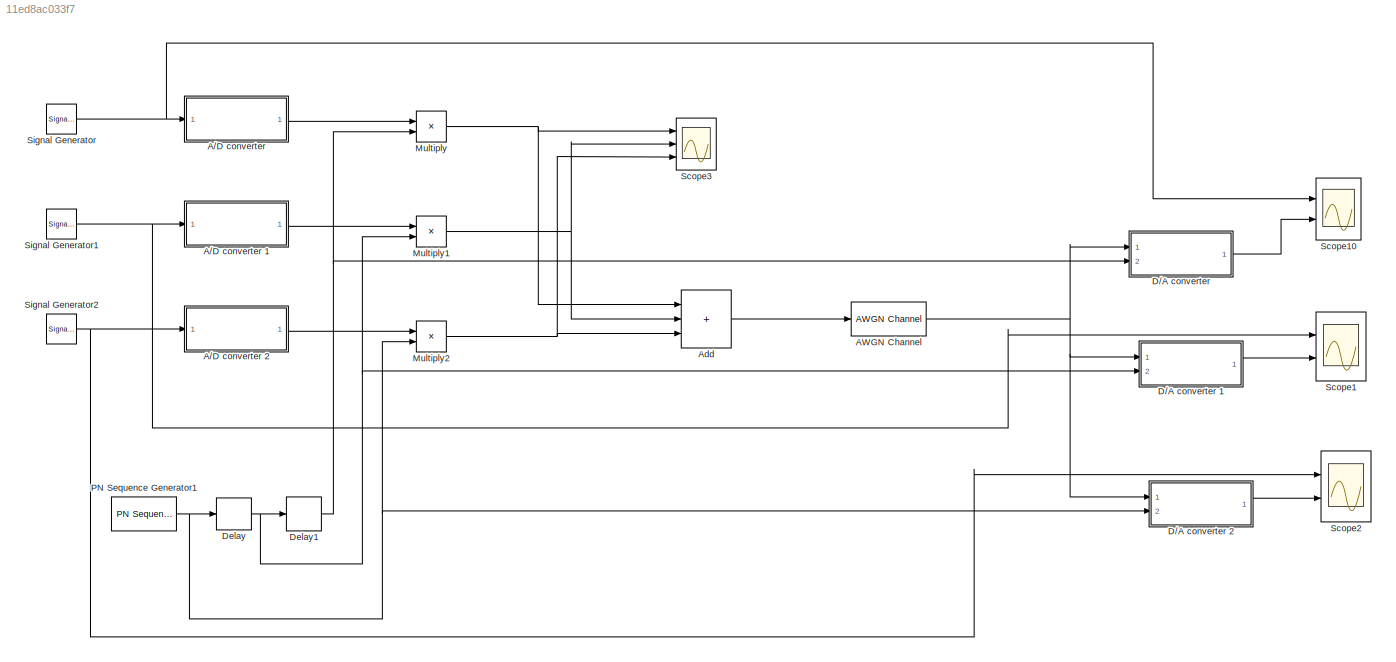
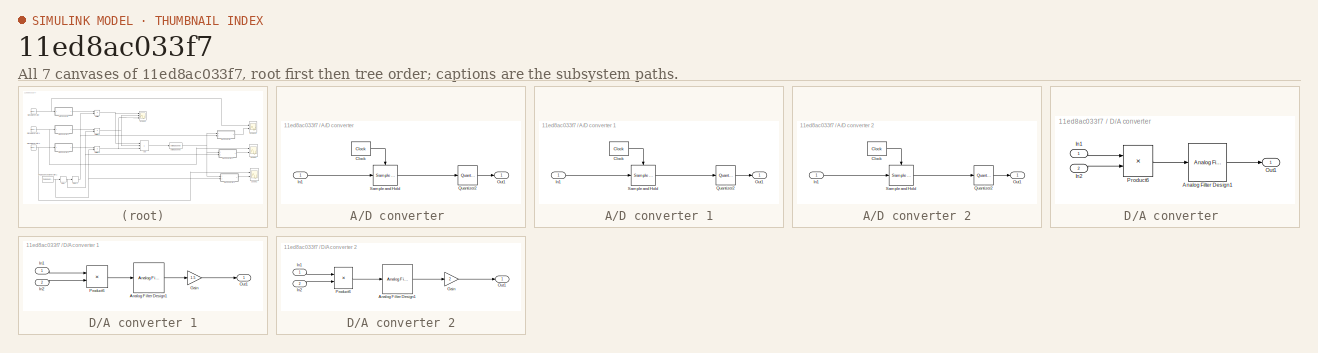
[diagram: thumbnail index - all 7 canvases of the model, root first then tree order]
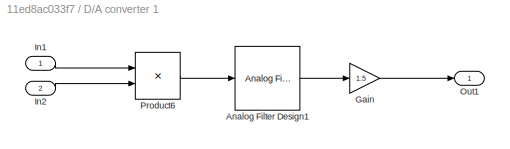
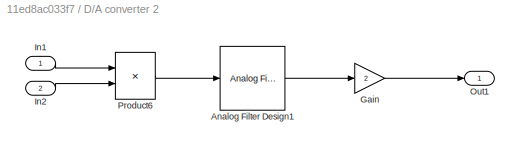
MODEL slx_11ed8ac033f7
KIND model
CONFIG AbsTol = auto
CONFIG EnableMultiTasking = off
CONFIG FixedStep = auto
CONFIG MaxStep = auto
CONFIG MinStep = auto
CONFIG RelTol = 1e-3
CONFIG SampleTimeConstraint = Unconstrained
CONFIG SolverName = VariableStepAuto
CONFIG StartTime = 0.0
CONFIG StopTime = 5
BLOCK [SubSystem] A//D converter 
  Ports = [1, 1]
  RequestExecContextInheritance = off
BLOCK [Reference] A//D converter /Clock  REF=simulink_extras/Flip Flops/Clock
  Ports = [0, 1]
  SourceBlock = simulink_extras/Flip Flops/Clock
  SourceProductBaseCode = SL
  SourceType = Digital clock
BLOCK [Inport] A//D converter /In1
BLOCK [Outport] A//D converter /Out1
  VectorParamsAs1DForOutWhenUnconnected = off
BLOCK [Quantizer] A//D converter /Quantizer2
  LinearizeAsGain = off
  QuantizationInterval = 0.2
BLOCK [Reference] A//D converter /Sample and Hold  REF=dspsigops/Sample
and Hold
  Ports = [1, 1, 0, 1]
  SourceBlock = dspsigops/Sample\nand Hold
  SourceProductBaseCode = DS
  SourceType = Sample and Hold
BLOCK [SubSystem] A//D converter 1
  Ports = [1, 1]
  RequestExecContextInheritance = off
BLOCK [Reference] A//D converter 1/Clock  REF=simulink_extras/Flip Flops/Clock
  Ports = [0, 1]
  SourceBlock = simulink_extras/Flip Flops/Clock
  SourceProductBaseCode = SL
  SourceType = Digital clock
BLOCK [Inport] A//D converter 1/In1
BLOCK [Outport] A//D converter 1/Out1
  VectorParamsAs1DForOutWhenUnconnected = off
BLOCK [Quantizer] A//D converter 1/Quantizer2
  LinearizeAsGain = off
  QuantizationInterval = 0.2
BLOCK [Reference] A//D converter 1/Sample and Hold  REF=dspsigops/Sample
and Hold
  Ports = [1, 1, 0, 1]
  SourceBlock = dspsigops/Sample\nand Hold
  SourceProductBaseCode = DS
  SourceType = Sample and Hold
BLOCK [SubSystem] A//D converter 2
  Ports = [1, 1]
  RequestExecContextInheritance = off
BLOCK [Reference] A//D converter 2/Clock  REF=simulink_extras/Flip Flops/Clock
  Ports = [0, 1]
  SourceBlock = simulink_extras/Flip Flops/Clock
  SourceProductBaseCode = SL
  SourceType = Digital clock
BLOCK [Inport] A//D converter 2/In1
BLOCK [Outport] A//D converter 2/Out1
  VectorParamsAs1DForOutWhenUnconnected = off
BLOCK [Quantizer] A//D converter 2/Quantizer2
  LinearizeAsGain = off
  QuantizationInterval = 0.2
BLOCK [Reference] A//D converter 2/Sample and Hold  REF=dspsigops/Sample
and Hold
  Ports = [1, 1, 0, 1]
  SourceBlock = dspsigops/Sample\nand Hold
  SourceProductBaseCode = DS
  SourceType = Sample and Hold
BLOCK [Reference] AWGN Channel  REF=commchan3/AWGN
Channel
  Ports = [1, 1]
  SourceBlock = commchan3/AWGN\nChannel
  SourceProductBaseCode = CM
  SourceType = AWGN Channel
  UserDataPersistent = on
BLOCK [Sum] Add
  IconShape = rectangular
  Inputs = +++
  Ports = [3, 1]
BLOCK [SubSystem] D//A converter 
  Ports = [2, 1]
  RequestExecContextInheritance = off
BLOCK [Reference] D//A converter /Analog Filter Design1  REF=dsparch4/Analog
Filter Design
  Ports = [1, 1]
  SourceBlock = dsparch4/Analog\nFilter Design
  SourceProductBaseCode = DS
  SourceType = Analog Filter Design
BLOCK [Inport] D//A converter /In1
BLOCK [Inport] D//A converter /In2
  Port = 2
BLOCK [Outport] D//A converter /Out1
  VectorParamsAs1DForOutWhenUnconnected = off
BLOCK [Product] D//A converter /Product6
  Ports = [2, 1]
BLOCK [SubSystem] D//A converter 1
  Ports = [2, 1]
  RequestExecContextInheritance = off
BLOCK [Reference] D//A converter 1/Analog Filter Design1  REF=dsparch4/Analog
Filter Design
  Ports = [1, 1]
  SourceBlock = dsparch4/Analog\nFilter Design
  SourceProductBaseCode = DS
  SourceType = Analog Filter Design
BLOCK [Gain] D//A converter 1/Gain
  Gain = 1.5
BLOCK [Inport] D//A converter 1/In1
BLOCK [Inport] D//A converter 1/In2
  Port = 2
BLOCK [Outport] D//A converter 1/Out1
  VectorParamsAs1DForOutWhenUnconnected = off
BLOCK [Product] D//A converter 1/Product6
  Ports = [2, 1]
BLOCK [SubSystem] D//A converter 2
  Ports = [2, 1]
  RequestExecContextInheritance = off
BLOCK [Reference] D//A converter 2/Analog Filter Design1  REF=dsparch4/Analog
Filter Design
  Ports = [1, 1]
  SourceBlock = dsparch4/Analog\nFilter Design
  SourceProductBaseCode = DS
  SourceType = Analog Filter Design
BLOCK [Gain] D//A converter 2/Gain
  Gain = 2
BLOCK [Inport] D//A converter 2/In1
BLOCK [Inport] D//A converter 2/In2
  Port = 2
BLOCK [Outport] D//A converter 2/Out1
  VectorParamsAs1DForOutWhenUnconnected = off
BLOCK [Product] D//A converter 2/Product6
  Ports = [2, 1]
BLOCK [Delay] Delay
  DelayLength = 4
  InputPortMap = u0
  InputProcessing = Columns as channels (frame based)
  Ports = [1, 1]
BLOCK [Delay] Delay1
  DelayLength = 3
  InputPortMap = u0
  Ports = [1, 1]
BLOCK [Product] Multiply
  Ports = [2, 1]
BLOCK [Product] Multiply1
  Ports = [2, 1]
BLOCK [Product] Multiply2
  Ports = [2, 1]
BLOCK [Reference] PN Sequence Generator1  REF=commseqgen3/PN Sequence
Generator
  Ports = [0, 1]
  SourceBlock = commseqgen3/PN Sequence\nGenerator
  SourceProductBaseCode = CM
  SourceType = PN Sequence Generator
BLOCK [Scope] Scope1
  Floating = off
  NumInputPorts = 2
  Ports = [2]
  ScopeSpecificationString = Simulink.scopes.TimeScopeBlockCfg('CurrentConfiguration', extmgr.ConfigurationSet(extmgr.Configuration('Core','General UI',true),extmgr.Configuration('Core','Source UI',true),extmgr.Configuration('Sources','WiredSimulink',true,'DataLoggingVariableName','ScopeData2'),extmgr.Configuration('Visuals','Time Domain',true,'SerializedDisplays',{struct('MinYLimReal','-2.49998','MaxYLimReal','2.49999','YLab...<+2079ch>
BLOCK [Scope] Scope10
  Floating = off
  NumInputPorts = 2
  Ports = [2]
  ScopeSpecificationString = Simulink.scopes.TimeScopeBlockCfg('CurrentConfiguration', extmgr.ConfigurationSet(extmgr.Configuration('Core','General UI',true),extmgr.Configuration('Core','Source UI',true),extmgr.Configuration('Sources','WiredSimulink',true,'DataLoggingVariableName','ScopeData3'),extmgr.Configuration('Visuals','Time Domain',true,'SerializedDisplays',{struct('MinYLimReal','-1.24999','MaxYLimReal','1.24999','YLab...<+2076ch>
BLOCK [Scope] Scope2
  Floating = off
  NumInputPorts = 2
  Ports = [2]
  ScopeSpecificationString = Simulink.scopes.TimeScopeBlockCfg('CurrentConfiguration', extmgr.ConfigurationSet(extmgr.Configuration('Core','General UI',true),extmgr.Configuration('Core','Source UI',true),extmgr.Configuration('Sources','WiredSimulink',true,'DataLoggingVariableName','ScopeData13'),extmgr.Configuration('Visuals','Time Domain',true,'SerializedDisplays',{struct('MinYLimReal','-3.74997','MaxYLimReal','3.74998','YLa...<+2055ch>
BLOCK [Scope] Scope3
  Floating = off
  NumInputPorts = 3
  Ports = [3]
  ScopeSpecificationString = Simulink.scopes.TimeScopeBlockCfg('CurrentConfiguration', extmgr.ConfigurationSet(extmgr.Configuration('Core','General UI',true),extmgr.Configuration('Core','Source UI',true),extmgr.Configuration('Sources','WiredSimulink',true,'DataLoggingVariableName','ScopeData5'),extmgr.Configuration('Visuals','Time Domain',true,'SerializedDisplays',{struct('MinYLimReal','-1.25','MaxYLimReal','1.25','YLabelReal...<+2718ch>
BLOCK [SignalGenerator] Signal Generator
  Frequency = 10
  Ports = [0, 1]
  Units = rad/sec
BLOCK [SignalGenerator] Signal Generator1
  Amplitude = 2
  Frequency = 10
  Ports = [0, 1]
  Units = rad/sec
BLOCK [SignalGenerator] Signal Generator2
  Amplitude = 3
  Frequency = 10
  Ports = [0, 1]
  Units = rad/sec
LINE A//D converter /Clock:1 -> A//D converter /Sample and Hold:trigger
LINE A//D converter /In1:1 -> A//D converter /Sample and Hold:1
LINE A//D converter /Quantizer2:1 -> A//D converter /Out1:1
LINE A//D converter /Sample and Hold:1 -> A//D converter /Quantizer2:1
LINE A//D converter 1/Clock:1 -> A//D converter 1/Sample and Hold:trigger
LINE A//D converter 1/In1:1 -> A//D converter 1/Sample and Hold:1
LINE A//D converter 1/Quantizer2:1 -> A//D converter 1/Out1:1
LINE A//D converter 1/Sample and Hold:1 -> A//D converter 1/Quantizer2:1
LINE A//D converter 1:1 -> Multiply1:1
LINE A//D converter 2/Clock:1 -> A//D converter 2/Sample and Hold:trigger
LINE A//D converter 2/In1:1 -> A//D converter 2/Sample and Hold:1
LINE A//D converter 2/Quantizer2:1 -> A//D converter 2/Out1:1
LINE A//D converter 2/Sample and Hold:1 -> A//D converter 2/Quantizer2:1
LINE A//D converter 2:1 -> Multiply2:1
LINE A//D converter :1 -> Multiply:1
NET AWGN Channel:1 -> D//A converter 1:1, D//A converter 2:1, D//A converter :1
LINE Add:1 -> AWGN Channel:1
LINE D//A converter /Analog Filter Design1:1 -> D//A converter /Out1:1
LINE D//A converter /In1:1 -> D//A converter /Product6:1
LINE D//A converter /In2:1 -> D//A converter /Product6:2
LINE D//A converter /Product6:1 -> D//A converter /Analog Filter Design1:1
LINE D//A converter 1/Analog Filter Design1:1 -> D//A converter 1/Gain:1
LINE D//A converter 1/Gain:1 -> D//A converter 1/Out1:1
LINE D//A converter 1/In1:1 -> D//A converter 1/Product6:1
LINE D//A converter 1/In2:1 -> D//A converter 1/Product6:2
LINE D//A converter 1/Product6:1 -> D//A converter 1/Analog Filter Design1:1
LINE D//A converter 1:1 -> Scope1:2
LINE D//A converter 2/Analog Filter Design1:1 -> D//A converter 2/Gain:1
LINE D//A converter 2/Gain:1 -> D//A converter 2/Out1:1
LINE D//A converter 2/In1:1 -> D//A converter 2/Product6:1
LINE D//A converter 2/In2:1 -> D//A converter 2/Product6:2
LINE D//A converter 2/Product6:1 -> D//A converter 2/Analog Filter Design1:1
LINE D//A converter 2:1 -> Scope2:2
LINE D//A converter :1 -> Scope10:2
NET Delay1:1 -> D//A converter :2, Multiply:2
NET Delay:1 -> D//A converter 1:2, Delay1:1, Multiply1:2
NET Multiply1:1 -> Add:2, Scope3:2
NET Multiply2:1 -> Add:3, Scope3:3
NET Multiply:1 -> Add:1, Scope3:1
NET PN Sequence Generator1:1 -> D//A converter 2:2, Delay:1, Multiply2:2
NET Signal Generator1:1 -> A//D converter 1:1, Scope1:1
NET Signal Generator2:1 -> A//D converter 2:1, Scope2:1
NET Signal Generator:1 -> A//D converter :1, Scope10:1
note: NET lines group one-source signal fan-out (src -> all destinations, sorted); 1:1 wires keep LINE
